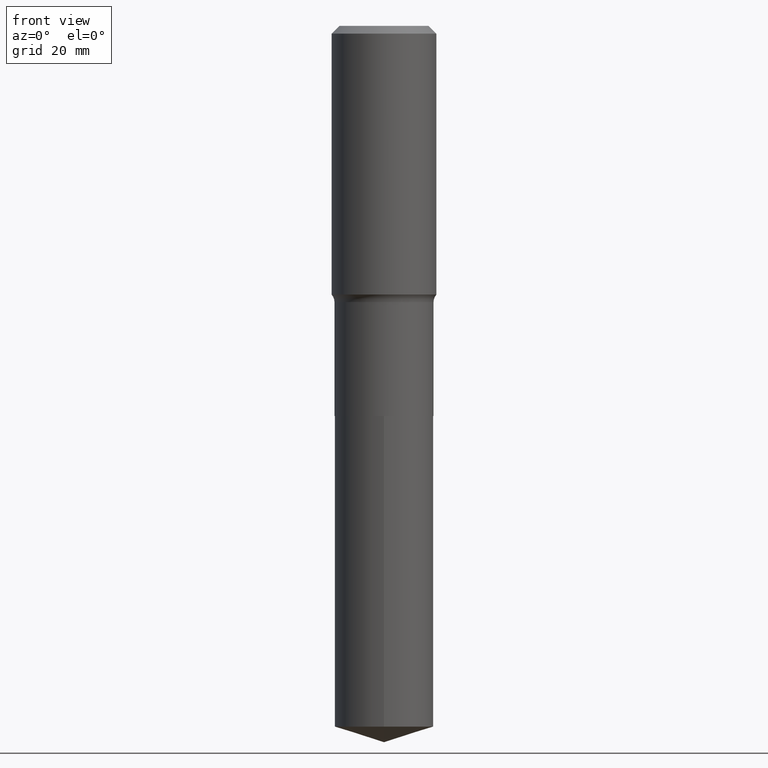
[diagram: clean part render]
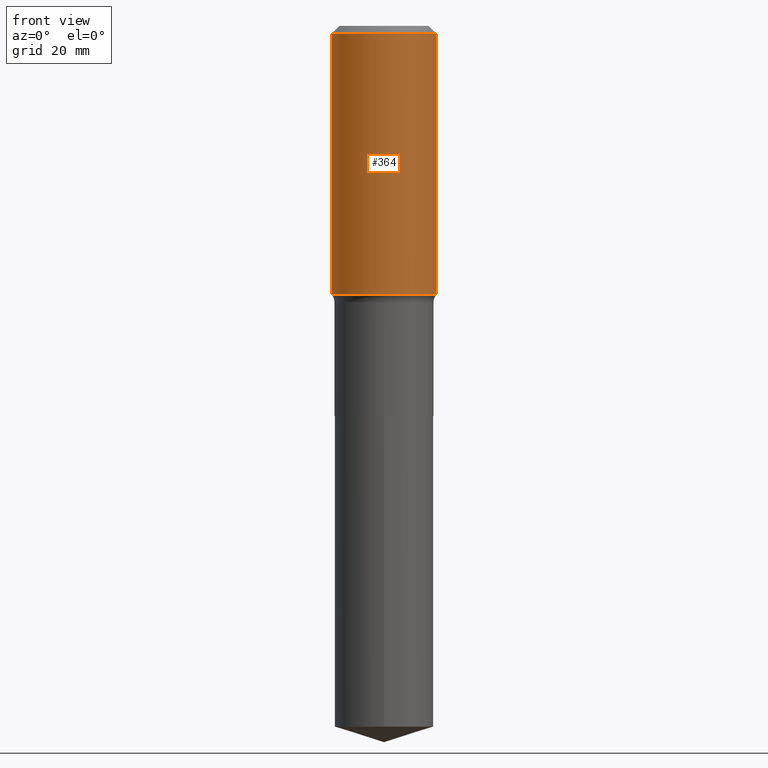
[diagram: same view with one face highlighted and labeled with its STEP entity id]
A machine part, front view. The second image highlights one B-rep face of the part: STEP entity #364.
In plain terms, the highlighted cylindrical surface (partial cylindrical patch) has radius 9.0005 mm, axis along (-0, 0, 1).
Its self-contained STEP definition (entity closure, byte-faithful):
#5 = CARTESIAN_POINT ( 'NONE',  ( 0.3543500000000001648, -8.815927369643196771E-15, -1.816281952950733025 ) ) ;
#12 = CARTESIAN_POINT ( 'NONE',  ( 0.3543499999999999983, -2.659993786700990170E-15, -0.05315250000000035224 ) ) ;
#41 = VERTEX_POINT ( 'NONE', #5 ) ;
#46 = DIRECTION ( 'NONE',  ( -2.445468806185136597E-29, 3.491481338843145583E-15, 1.000000000000000000 ) ) ;
#64 = ORIENTED_EDGE ( 'NONE', *, *, #453, .T. ) ;
#65 = CIRCLE ( 'NONE', #186, 0.3543500000000002204 ) ;
#76 = VERTEX_POINT ( 'NONE', #12 ) ;
#118 = CYLINDRICAL_SURFACE ( 'NONE', #229, 0.3543500000000001648 ) ;
#120 = EDGE_CURVE ( 'NONE', #373, #41, #65, .T. ) ;
#126 = DIRECTION ( 'NONE',  ( -2.445468806185136597E-29, 3.491481338843145583E-15, 1.000000000000000000 ) ) ;
#134 = DIRECTION ( 'NONE',  ( 1.000000000000000000, -6.982962677686266711E-15, 0.000000000000000000 ) ) ;
#139 = CARTESIAN_POINT ( 'NONE',  ( -0.3543500000000001648, 2.517808184165916180E-15, -1.743024649231826627E-29 ) ) ;
#145 = CARTESIAN_POINT ( 'NONE',  ( 0.3543500000000001648, -2.474412824838129483E-15, 1.727873240503290590E-29 ) ) ;
#146 = EDGE_CURVE ( 'NONE', #374, #76, #163, .T. ) ;
#151 = EDGE_LOOP ( 'NONE', ( #449, #191, #64, #298 ) ) ;
#152 = FACE_OUTER_BOUND ( 'NONE', #151, .T. ) ;
#163 = CIRCLE ( 'NONE', #435, 0.3543499999999999983 ) ;
#186 = AXIS2_PLACEMENT_3D ( 'NONE', #270, #327, #476 ) ;
#191 = ORIENTED_EDGE ( 'NONE', *, *, #120, .T. ) ;
#211 = VECTOR ( 'NONE', #361, 39.37007874015748143 ) ;
#213 = LINE ( 'NONE', #139, #211 ) ;
#229 = AXIS2_PLACEMENT_3D ( 'NONE', #346, #126, #234 ) ;
#234 = DIRECTION ( 'NONE',  ( 1.000000000000000000, -6.982962677686265922E-15, 4.876176775795935793E-29 ) ) ;
#266 = CARTESIAN_POINT ( 'NONE',  ( -0.3543500000000001648, -3.823706360639151503E-15, -1.816281952950733025 ) ) ;
#270 = CARTESIAN_POINT ( 'NONE',  ( 4.441660859178037633E-29, -6.341514544805068471E-15, -1.816281952950733025 ) ) ;
#298 = ORIENTED_EDGE ( 'NONE', *, *, #146, .F. ) ;
#327 = DIRECTION ( 'NONE',  ( -2.445468806185136597E-29, 3.491481338843145583E-15, 1.000000000000000000 ) ) ;
#328 = DIRECTION ( 'NONE',  ( -2.445468806185136877E-29, 3.491481338843145188E-15, 1.000000000000000000 ) ) ;
#346 = CARTESIAN_POINT ( 'NONE',  ( 0.000000000000000000, 0.000000000000000000, 0.000000000000000000 ) ) ;
#353 = CARTESIAN_POINT ( 'NONE',  ( 1.299827807207563322E-30, -1.855809618628615256E-16, -0.05315250000000035224 ) ) ;
#361 = DIRECTION ( 'NONE',  ( -2.445468806185136877E-29, 3.491481338843145188E-15, 1.000000000000000000 ) ) ;
#364 = ADVANCED_FACE ( 'NONE', ( #152 ), #118, .T. ) ;
#373 = VERTEX_POINT ( 'NONE', #266 ) ;
#374 = VERTEX_POINT ( 'NONE', #418 ) ;
#418 = CARTESIAN_POINT ( 'NONE',  ( -0.3543499999999999983, -7.457395691680486953E-16, -0.05315250000000035224 ) ) ;
#422 = LINE ( 'NONE', #145, #485 ) ;
#428 = EDGE_CURVE ( 'NONE', #373, #374, #213, .T. ) ;
#435 = AXIS2_PLACEMENT_3D ( 'NONE', #353, #46, #134 ) ;
#449 = ORIENTED_EDGE ( 'NONE', *, *, #428, .F. ) ;
#453 = EDGE_CURVE ( 'NONE', #41, #76, #422, .T. ) ;
#476 = DIRECTION ( 'NONE',  ( 1.000000000000000000, -6.982962677686266711E-15, 0.000000000000000000 ) ) ;
#485 = VECTOR ( 'NONE', #328, 39.37007874015748143 ) ;